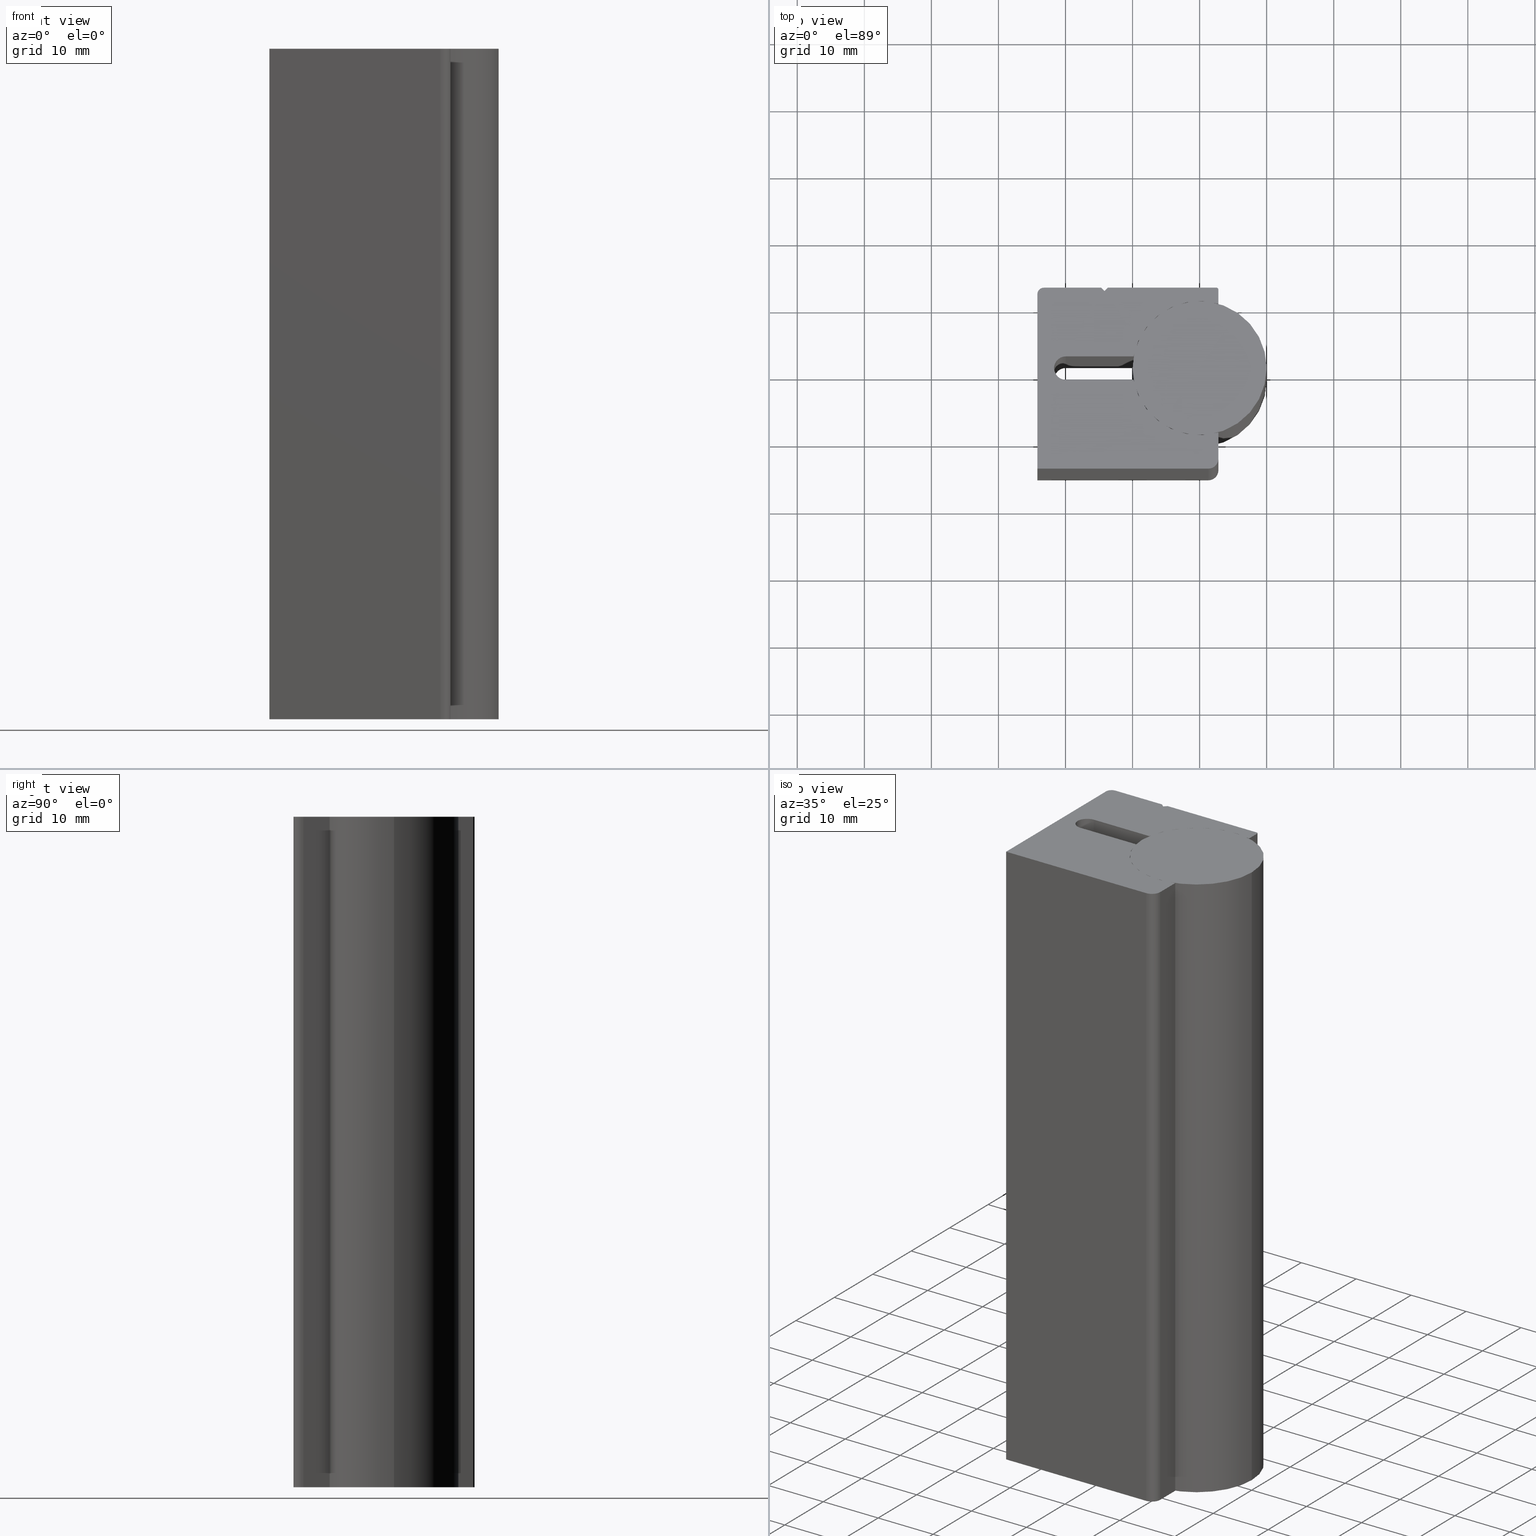
[diagram: canonical four-view strip — front | top / right | iso, engineering-drawing reading convention]
A machine part, canonical four-view strip (front | top / right | iso — engineering-drawing reading convention). The complete STEP part file that produces these views, byte-faithful:
ISO-10303-21;
HEADER;
/* Generated by software containing ST-Developer
 * from STEP Tools, Inc. (www.steptools.com) 
 */

FILE_DESCRIPTION(
/* description */ ('PROFILO GUIDA LINEARE GS20'),
/* implementation_level */ '2;1');

FILE_NAME(
/* name */ 
'C:\\Users\\tecnico5\\Desktop\\SITOWEB\\BPRGD0000069\\BPRGD0000069.stp',

/* time_stamp */ '2022-07-27T09:22:47+02:00',
/* author */ ('tecnico3.vi'),
/* organization */ (''),
/* preprocessor_version */ 'ST-DEVELOPER v18.1',
/* originating_system */ 'Autodesk Inventor 2022',
/* authorisation */ '');

FILE_SCHEMA (('AUTOMOTIVE_DESIGN { 1 0 10303 214 3 1 1 }'));
ENDSEC;

DATA;
#10=MECHANICAL_DESIGN_GEOMETRIC_PRESENTATION_REPRESENTATION('',(#23,#24),
#725);
#11=ITEM_DEFINED_TRANSFORMATION($,$,#451,#488);
#12=ITEM_DEFINED_TRANSFORMATION($,$,#482,#489);
#13=(
REPRESENTATION_RELATIONSHIP($,$,#739,#738)
REPRESENTATION_RELATIONSHIP_WITH_TRANSFORMATION(#11)
SHAPE_REPRESENTATION_RELATIONSHIP()
);
#14=(
REPRESENTATION_RELATIONSHIP($,$,#740,#738)
REPRESENTATION_RELATIONSHIP_WITH_TRANSFORMATION(#12)
SHAPE_REPRESENTATION_RELATIONSHIP()
);
#15=CONTEXT_DEPENDENT_SHAPE_REPRESENTATION(#13,#736);
#16=CONTEXT_DEPENDENT_SHAPE_REPRESENTATION(#14,#737);
#17=NEXT_ASSEMBLY_USAGE_OCCURRENCE('958530008660:1','958530008660:1',
'958530008660:1',#742,#743,'958530008660:1');
#18=NEXT_ASSEMBLY_USAGE_OCCURRENCE('958530008659:1','958530008659:1',
'958530008659:1',#742,#744,'958530008659:1');
#19=SHAPE_REPRESENTATION_RELATIONSHIP('SRR','None',#739,#21);
#20=SHAPE_REPRESENTATION_RELATIONSHIP('SRR','None',#740,#22);
#21=ADVANCED_BREP_SHAPE_REPRESENTATION('',(#25),#723);
#22=ADVANCED_BREP_SHAPE_REPRESENTATION('',(#26),#724);
#23=STYLED_ITEM('',(#414),#25);
#24=STYLED_ITEM('',(#415),#26);
#25=MANIFOLD_SOLID_BREP('Solido1',#386);
#26=MANIFOLD_SOLID_BREP('Solido1',#387);
#27=CIRCLE('',#456,0.300000000000006);
#28=CIRCLE('',#457,0.300000000000006);
#29=CIRCLE('',#460,10.);
#30=CIRCLE('',#461,10.);
#31=CIRCLE('',#464,1.75);
#32=CIRCLE('',#465,1.75);
#33=CIRCLE('',#468,10.);
#34=CIRCLE('',#469,10.);
#35=CIRCLE('',#472,1.5);
#36=CIRCLE('',#473,1.5);
#37=CIRCLE('',#477,1.00000000000001);
#38=CIRCLE('',#478,1.00000000000001);
#39=CIRCLE('',#484,10.);
#40=CIRCLE('',#485,10.);
#41=CYLINDRICAL_SURFACE('',#455,0.300000000000006);
#42=CYLINDRICAL_SURFACE('',#459,10.);
#43=CYLINDRICAL_SURFACE('',#463,1.75);
#44=CYLINDRICAL_SURFACE('',#467,10.);
#45=CYLINDRICAL_SURFACE('',#471,1.5);
#46=CYLINDRICAL_SURFACE('',#476,1.00000000000001);
#47=CYLINDRICAL_SURFACE('',#483,10.);
#48=FACE_OUTER_BOUND('',#69,.T.);
#49=FACE_OUTER_BOUND('',#70,.T.);
#50=FACE_OUTER_BOUND('',#71,.T.);
#51=FACE_OUTER_BOUND('',#72,.T.);
#52=FACE_OUTER_BOUND('',#73,.T.);
#53=FACE_OUTER_BOUND('',#74,.T.);
#54=FACE_OUTER_BOUND('',#75,.T.);
#55=FACE_OUTER_BOUND('',#76,.T.);
#56=FACE_OUTER_BOUND('',#77,.T.);
#57=FACE_OUTER_BOUND('',#78,.T.);
#58=FACE_OUTER_BOUND('',#79,.T.);
#59=FACE_OUTER_BOUND('',#80,.T.);
#60=FACE_OUTER_BOUND('',#81,.T.);
#61=FACE_OUTER_BOUND('',#82,.T.);
#62=FACE_OUTER_BOUND('',#83,.T.);
#63=FACE_OUTER_BOUND('',#84,.T.);
#64=FACE_OUTER_BOUND('',#85,.T.);
#65=FACE_OUTER_BOUND('',#86,.T.);
#66=FACE_OUTER_BOUND('',#87,.T.);
#67=FACE_OUTER_BOUND('',#88,.T.);
#68=FACE_OUTER_BOUND('',#89,.T.);
#69=EDGE_LOOP('',(#249,#250,#251,#252));
#70=EDGE_LOOP('',(#253,#254,#255,#256));
#71=EDGE_LOOP('',(#257,#258,#259,#260));
#72=EDGE_LOOP('',(#261,#262,#263,#264));
#73=EDGE_LOOP('',(#265,#266,#267,#268));
#74=EDGE_LOOP('',(#269,#270,#271,#272));
#75=EDGE_LOOP('',(#273,#274,#275,#276));
#76=EDGE_LOOP('',(#277,#278,#279,#280));
#77=EDGE_LOOP('',(#281,#282,#283,#284));
#78=EDGE_LOOP('',(#285,#286,#287,#288));
#79=EDGE_LOOP('',(#289,#290,#291,#292));
#80=EDGE_LOOP('',(#293,#294,#295,#296));
#81=EDGE_LOOP('',(#297,#298,#299,#300));
#82=EDGE_LOOP('',(#301,#302,#303,#304));
#83=EDGE_LOOP('',(#305,#306,#307,#308));
#84=EDGE_LOOP('',(#309,#310,#311,#312));
#85=EDGE_LOOP('',(#313,#314,#315,#316,#317,#318,#319,#320,#321,#322,#323,
#324,#325,#326,#327,#328));
#86=EDGE_LOOP('',(#329,#330,#331,#332,#333,#334,#335,#336,#337,#338,#339,
#340,#341,#342,#343,#344));
#87=EDGE_LOOP('',(#345,#346,#347,#348));
#88=EDGE_LOOP('',(#349));
#89=EDGE_LOOP('',(#350));
#90=LINE('',#612,#127);
#91=LINE('',#614,#128);
#92=LINE('',#616,#129);
#93=LINE('',#617,#130);
#94=LINE('',#620,#131);
#95=LINE('',#622,#132);
#96=LINE('',#623,#133);
#97=LINE('',#626,#134);
#98=LINE('',#628,#135);
#99=LINE('',#629,#136);
#100=LINE('',#635,#137);
#101=LINE('',#638,#138);
#102=LINE('',#640,#139);
#103=LINE('',#641,#140);
#104=LINE('',#647,#141);
#105=LINE('',#650,#142);
#106=LINE('',#652,#143);
#107=LINE('',#653,#144);
#108=LINE('',#659,#145);
#109=LINE('',#662,#146);
#110=LINE('',#664,#147);
#111=LINE('',#665,#148);
#112=LINE('',#671,#149);
#113=LINE('',#674,#150);
#114=LINE('',#676,#151);
#115=LINE('',#677,#152);
#116=LINE('',#683,#153);
#117=LINE('',#686,#154);
#118=LINE('',#688,#155);
#119=LINE('',#689,#156);
#120=LINE('',#692,#157);
#121=LINE('',#694,#158);
#122=LINE('',#695,#159);
#123=LINE('',#701,#160);
#124=LINE('',#703,#161);
#125=LINE('',#704,#162);
#126=LINE('',#712,#163);
#127=VECTOR('',#496,10.);
#128=VECTOR('',#497,10.);
#129=VECTOR('',#498,10.);
#130=VECTOR('',#499,10.);
#131=VECTOR('',#502,10.);
#132=VECTOR('',#503,10.);
#133=VECTOR('',#504,10.);
#134=VECTOR('',#507,10.);
#135=VECTOR('',#508,10.);
#136=VECTOR('',#509,10.);
#137=VECTOR('',#516,10.);
#138=VECTOR('',#519,10.);
#139=VECTOR('',#520,10.);
#140=VECTOR('',#521,10.);
#141=VECTOR('',#528,10.);
#142=VECTOR('',#531,10.);
#143=VECTOR('',#532,10.);
#144=VECTOR('',#533,10.);
#145=VECTOR('',#540,10.);
#146=VECTOR('',#543,10.);
#147=VECTOR('',#544,10.);
#148=VECTOR('',#545,10.);
#149=VECTOR('',#552,10.);
#150=VECTOR('',#555,10.);
#151=VECTOR('',#556,10.);
#152=VECTOR('',#557,10.);
#153=VECTOR('',#564,10.);
#154=VECTOR('',#567,10.);
#155=VECTOR('',#568,10.);
#156=VECTOR('',#569,10.);
#157=VECTOR('',#572,10.);
#158=VECTOR('',#573,10.);
#159=VECTOR('',#574,10.);
#160=VECTOR('',#581,10.);
#161=VECTOR('',#584,10.);
#162=VECTOR('',#585,10.);
#163=VECTOR('',#596,10.);
#164=VERTEX_POINT('',#610);
#165=VERTEX_POINT('',#611);
#166=VERTEX_POINT('',#613);
#167=VERTEX_POINT('',#615);
#168=VERTEX_POINT('',#619);
#169=VERTEX_POINT('',#621);
#170=VERTEX_POINT('',#625);
#171=VERTEX_POINT('',#627);
#172=VERTEX_POINT('',#631);
#173=VERTEX_POINT('',#633);
#174=VERTEX_POINT('',#637);
#175=VERTEX_POINT('',#639);
#176=VERTEX_POINT('',#643);
#177=VERTEX_POINT('',#645);
#178=VERTEX_POINT('',#649);
#179=VERTEX_POINT('',#651);
#180=VERTEX_POINT('',#655);
#181=VERTEX_POINT('',#657);
#182=VERTEX_POINT('',#661);
#183=VERTEX_POINT('',#663);
#184=VERTEX_POINT('',#667);
#185=VERTEX_POINT('',#669);
#186=VERTEX_POINT('',#673);
#187=VERTEX_POINT('',#675);
#188=VERTEX_POINT('',#679);
#189=VERTEX_POINT('',#681);
#190=VERTEX_POINT('',#685);
#191=VERTEX_POINT('',#687);
#192=VERTEX_POINT('',#691);
#193=VERTEX_POINT('',#693);
#194=VERTEX_POINT('',#697);
#195=VERTEX_POINT('',#699);
#196=VERTEX_POINT('',#709);
#197=VERTEX_POINT('',#711);
#198=EDGE_CURVE('',#164,#165,#90,.T.);
#199=EDGE_CURVE('',#165,#166,#91,.T.);
#200=EDGE_CURVE('',#167,#166,#92,.T.);
#201=EDGE_CURVE('',#164,#167,#93,.T.);
#202=EDGE_CURVE('',#168,#164,#94,.T.);
#203=EDGE_CURVE('',#169,#167,#95,.T.);
#204=EDGE_CURVE('',#168,#169,#96,.T.);
#205=EDGE_CURVE('',#170,#168,#97,.T.);
#206=EDGE_CURVE('',#171,#169,#98,.T.);
#207=EDGE_CURVE('',#170,#171,#99,.T.);
#208=EDGE_CURVE('',#172,#170,#27,.T.);
#209=EDGE_CURVE('',#173,#171,#28,.T.);
#210=EDGE_CURVE('',#172,#173,#100,.T.);
#211=EDGE_CURVE('',#174,#172,#101,.T.);
#212=EDGE_CURVE('',#175,#173,#102,.T.);
#213=EDGE_CURVE('',#174,#175,#103,.T.);
#214=EDGE_CURVE('',#176,#174,#29,.T.);
#215=EDGE_CURVE('',#177,#175,#30,.T.);
#216=EDGE_CURVE('',#176,#177,#104,.T.);
#217=EDGE_CURVE('',#178,#176,#105,.T.);
#218=EDGE_CURVE('',#179,#177,#106,.T.);
#219=EDGE_CURVE('',#178,#179,#107,.T.);
#220=EDGE_CURVE('',#180,#178,#31,.T.);
#221=EDGE_CURVE('',#181,#179,#32,.T.);
#222=EDGE_CURVE('',#180,#181,#108,.T.);
#223=EDGE_CURVE('',#182,#180,#109,.T.);
#224=EDGE_CURVE('',#183,#181,#110,.T.);
#225=EDGE_CURVE('',#182,#183,#111,.T.);
#226=EDGE_CURVE('',#184,#182,#33,.T.);
#227=EDGE_CURVE('',#185,#183,#34,.T.);
#228=EDGE_CURVE('',#184,#185,#112,.T.);
#229=EDGE_CURVE('',#186,#184,#113,.T.);
#230=EDGE_CURVE('',#187,#185,#114,.T.);
#231=EDGE_CURVE('',#186,#187,#115,.T.);
#232=EDGE_CURVE('',#188,#186,#35,.T.);
#233=EDGE_CURVE('',#189,#187,#36,.T.);
#234=EDGE_CURVE('',#188,#189,#116,.T.);
#235=EDGE_CURVE('',#190,#188,#117,.T.);
#236=EDGE_CURVE('',#191,#189,#118,.T.);
#237=EDGE_CURVE('',#190,#191,#119,.T.);
#238=EDGE_CURVE('',#192,#190,#120,.T.);
#239=EDGE_CURVE('',#193,#191,#121,.T.);
#240=EDGE_CURVE('',#192,#193,#122,.T.);
#241=EDGE_CURVE('',#194,#192,#37,.T.);
#242=EDGE_CURVE('',#195,#193,#38,.T.);
#243=EDGE_CURVE('',#194,#195,#123,.T.);
#244=EDGE_CURVE('',#165,#194,#124,.T.);
#245=EDGE_CURVE('',#166,#195,#125,.T.);
#246=EDGE_CURVE('',#196,#196,#39,.T.);
#247=EDGE_CURVE('',#196,#197,#126,.T.);
#248=EDGE_CURVE('',#197,#197,#40,.T.);
#249=ORIENTED_EDGE('',*,*,#198,.T.);
#250=ORIENTED_EDGE('',*,*,#199,.T.);
#251=ORIENTED_EDGE('',*,*,#200,.F.);
#252=ORIENTED_EDGE('',*,*,#201,.F.);
#253=ORIENTED_EDGE('',*,*,#202,.T.);
#254=ORIENTED_EDGE('',*,*,#201,.T.);
#255=ORIENTED_EDGE('',*,*,#203,.F.);
#256=ORIENTED_EDGE('',*,*,#204,.F.);
#257=ORIENTED_EDGE('',*,*,#205,.T.);
#258=ORIENTED_EDGE('',*,*,#204,.T.);
#259=ORIENTED_EDGE('',*,*,#206,.F.);
#260=ORIENTED_EDGE('',*,*,#207,.F.);
#261=ORIENTED_EDGE('',*,*,#208,.T.);
#262=ORIENTED_EDGE('',*,*,#207,.T.);
#263=ORIENTED_EDGE('',*,*,#209,.F.);
#264=ORIENTED_EDGE('',*,*,#210,.F.);
#265=ORIENTED_EDGE('',*,*,#211,.T.);
#266=ORIENTED_EDGE('',*,*,#210,.T.);
#267=ORIENTED_EDGE('',*,*,#212,.F.);
#268=ORIENTED_EDGE('',*,*,#213,.F.);
#269=ORIENTED_EDGE('',*,*,#214,.T.);
#270=ORIENTED_EDGE('',*,*,#213,.T.);
#271=ORIENTED_EDGE('',*,*,#215,.F.);
#272=ORIENTED_EDGE('',*,*,#216,.F.);
#273=ORIENTED_EDGE('',*,*,#217,.T.);
#274=ORIENTED_EDGE('',*,*,#216,.T.);
#275=ORIENTED_EDGE('',*,*,#218,.F.);
#276=ORIENTED_EDGE('',*,*,#219,.F.);
#277=ORIENTED_EDGE('',*,*,#220,.T.);
#278=ORIENTED_EDGE('',*,*,#219,.T.);
#279=ORIENTED_EDGE('',*,*,#221,.F.);
#280=ORIENTED_EDGE('',*,*,#222,.F.);
#281=ORIENTED_EDGE('',*,*,#223,.T.);
#282=ORIENTED_EDGE('',*,*,#222,.T.);
#283=ORIENTED_EDGE('',*,*,#224,.F.);
#284=ORIENTED_EDGE('',*,*,#225,.F.);
#285=ORIENTED_EDGE('',*,*,#226,.T.);
#286=ORIENTED_EDGE('',*,*,#225,.T.);
#287=ORIENTED_EDGE('',*,*,#227,.F.);
#288=ORIENTED_EDGE('',*,*,#228,.F.);
#289=ORIENTED_EDGE('',*,*,#229,.T.);
#290=ORIENTED_EDGE('',*,*,#228,.T.);
#291=ORIENTED_EDGE('',*,*,#230,.F.);
#292=ORIENTED_EDGE('',*,*,#231,.F.);
#293=ORIENTED_EDGE('',*,*,#232,.T.);
#294=ORIENTED_EDGE('',*,*,#231,.T.);
#295=ORIENTED_EDGE('',*,*,#233,.F.);
#296=ORIENTED_EDGE('',*,*,#234,.F.);
#297=ORIENTED_EDGE('',*,*,#235,.T.);
#298=ORIENTED_EDGE('',*,*,#234,.T.);
#299=ORIENTED_EDGE('',*,*,#236,.F.);
#300=ORIENTED_EDGE('',*,*,#237,.F.);
#301=ORIENTED_EDGE('',*,*,#238,.T.);
#302=ORIENTED_EDGE('',*,*,#237,.T.);
#303=ORIENTED_EDGE('',*,*,#239,.F.);
#304=ORIENTED_EDGE('',*,*,#240,.F.);
#305=ORIENTED_EDGE('',*,*,#241,.T.);
#306=ORIENTED_EDGE('',*,*,#240,.T.);
#307=ORIENTED_EDGE('',*,*,#242,.F.);
#308=ORIENTED_EDGE('',*,*,#243,.F.);
#309=ORIENTED_EDGE('',*,*,#244,.T.);
#310=ORIENTED_EDGE('',*,*,#243,.T.);
#311=ORIENTED_EDGE('',*,*,#245,.F.);
#312=ORIENTED_EDGE('',*,*,#199,.F.);
#313=ORIENTED_EDGE('',*,*,#245,.T.);
#314=ORIENTED_EDGE('',*,*,#242,.T.);
#315=ORIENTED_EDGE('',*,*,#239,.T.);
#316=ORIENTED_EDGE('',*,*,#236,.T.);
#317=ORIENTED_EDGE('',*,*,#233,.T.);
#318=ORIENTED_EDGE('',*,*,#230,.T.);
#319=ORIENTED_EDGE('',*,*,#227,.T.);
#320=ORIENTED_EDGE('',*,*,#224,.T.);
#321=ORIENTED_EDGE('',*,*,#221,.T.);
#322=ORIENTED_EDGE('',*,*,#218,.T.);
#323=ORIENTED_EDGE('',*,*,#215,.T.);
#324=ORIENTED_EDGE('',*,*,#212,.T.);
#325=ORIENTED_EDGE('',*,*,#209,.T.);
#326=ORIENTED_EDGE('',*,*,#206,.T.);
#327=ORIENTED_EDGE('',*,*,#203,.T.);
#328=ORIENTED_EDGE('',*,*,#200,.T.);
#329=ORIENTED_EDGE('',*,*,#244,.F.);
#330=ORIENTED_EDGE('',*,*,#198,.F.);
#331=ORIENTED_EDGE('',*,*,#202,.F.);
#332=ORIENTED_EDGE('',*,*,#205,.F.);
#333=ORIENTED_EDGE('',*,*,#208,.F.);
#334=ORIENTED_EDGE('',*,*,#211,.F.);
#335=ORIENTED_EDGE('',*,*,#214,.F.);
#336=ORIENTED_EDGE('',*,*,#217,.F.);
#337=ORIENTED_EDGE('',*,*,#220,.F.);
#338=ORIENTED_EDGE('',*,*,#223,.F.);
#339=ORIENTED_EDGE('',*,*,#226,.F.);
#340=ORIENTED_EDGE('',*,*,#229,.F.);
#341=ORIENTED_EDGE('',*,*,#232,.F.);
#342=ORIENTED_EDGE('',*,*,#235,.F.);
#343=ORIENTED_EDGE('',*,*,#238,.F.);
#344=ORIENTED_EDGE('',*,*,#241,.F.);
#345=ORIENTED_EDGE('',*,*,#246,.F.);
#346=ORIENTED_EDGE('',*,*,#247,.T.);
#347=ORIENTED_EDGE('',*,*,#248,.F.);
#348=ORIENTED_EDGE('',*,*,#247,.F.);
#349=ORIENTED_EDGE('',*,*,#246,.T.);
#350=ORIENTED_EDGE('',*,*,#248,.T.);
#351=PLANE('',#452);
#352=PLANE('',#453);
#353=PLANE('',#454);
#354=PLANE('',#458);
#355=PLANE('',#462);
#356=PLANE('',#466);
#357=PLANE('',#470);
#358=PLANE('',#474);
#359=PLANE('',#475);
#360=PLANE('',#479);
#361=PLANE('',#480);
#362=PLANE('',#481);
#363=PLANE('',#486);
#364=PLANE('',#487);
#365=ADVANCED_FACE('',(#48),#351,.T.);
#366=ADVANCED_FACE('',(#49),#352,.T.);
#367=ADVANCED_FACE('',(#50),#353,.T.);
#368=ADVANCED_FACE('',(#51),#41,.T.);
#369=ADVANCED_FACE('',(#52),#354,.T.);
#370=ADVANCED_FACE('',(#53),#42,.F.);
#371=ADVANCED_FACE('',(#54),#355,.T.);
#372=ADVANCED_FACE('',(#55),#43,.F.);
#373=ADVANCED_FACE('',(#56),#356,.T.);
#374=ADVANCED_FACE('',(#57),#44,.F.);
#375=ADVANCED_FACE('',(#58),#357,.T.);
#376=ADVANCED_FACE('',(#59),#45,.T.);
#377=ADVANCED_FACE('',(#60),#358,.T.);
#378=ADVANCED_FACE('',(#61),#359,.T.);
#379=ADVANCED_FACE('',(#62),#46,.T.);
#380=ADVANCED_FACE('',(#63),#360,.T.);
#381=ADVANCED_FACE('',(#64),#361,.T.);
#382=ADVANCED_FACE('',(#65),#362,.F.);
#383=ADVANCED_FACE('',(#66),#47,.T.);
#384=ADVANCED_FACE('',(#67),#363,.T.);
#385=ADVANCED_FACE('',(#68),#364,.F.);
#386=CLOSED_SHELL('',(#365,#366,#367,#368,#369,#370,#371,#372,#373,#374,
#375,#376,#377,#378,#379,#380,#381,#382));
#387=CLOSED_SHELL('',(#383,#384,#385));
#388=DERIVED_UNIT_ELEMENT(#393,1.);
#389=DERIVED_UNIT_ELEMENT(#727,-3.);
#390=DERIVED_UNIT_ELEMENT(#393,1.);
#391=DERIVED_UNIT_ELEMENT(#727,-3.);
#392=DIMENSIONAL_EXPONENTS(1.,0.,0.,0.,0.,0.,0.);
#393=(
CONVERSION_BASED_UNIT('gram',#395)
MASS_UNIT()
NAMED_UNIT(#392)
);
#394=(
MASS_UNIT()
NAMED_UNIT(*)
SI_UNIT(.KILO.,.GRAM.)
);
#395=MASS_MEASURE_WITH_UNIT(MASS_MEASURE(0.001),#394);
#396=DERIVED_UNIT((#388,#389));
#397=DERIVED_UNIT((#390,#391));
#398=MEASURE_REPRESENTATION_ITEM('density measure',
POSITIVE_RATIO_MEASURE(2.71),#396);
#399=MEASURE_REPRESENTATION_ITEM('density measure',
POSITIVE_RATIO_MEASURE(7.87),#397);
#400=PROPERTY_DEFINITION_REPRESENTATION(#410,#404);
#401=PROPERTY_DEFINITION_REPRESENTATION(#411,#405);
#402=PROPERTY_DEFINITION_REPRESENTATION(#412,#406);
#403=PROPERTY_DEFINITION_REPRESENTATION(#413,#407);
#404=REPRESENTATION('material name',(#408),#723);
#405=REPRESENTATION('density',(#398),#723);
#406=REPRESENTATION('material name',(#409),#724);
#407=REPRESENTATION('density',(#399),#724);
#408=DESCRIPTIVE_REPRESENTATION_ITEM('Alluminio 6060 Anticorodal',
'Alluminio 6060 Anticorodal');
#409=DESCRIPTIVE_REPRESENTATION_ITEM('Acciaio 1 C40','Acciaio 1 C40');
#410=PROPERTY_DEFINITION('material property','material name',#743);
#411=PROPERTY_DEFINITION('material property','density of part',#743);
#412=PROPERTY_DEFINITION('material property','material name',#744);
#413=PROPERTY_DEFINITION('material property','density of part',#744);
#414=PRESENTATION_STYLE_ASSIGNMENT((#416));
#415=PRESENTATION_STYLE_ASSIGNMENT((#417));
#416=SURFACE_STYLE_USAGE(.BOTH.,#422);
#417=SURFACE_STYLE_USAGE(.BOTH.,#423);
#418=SURFACE_STYLE_RENDERING_WITH_PROPERTIES($,#430,(#420));
#419=SURFACE_STYLE_RENDERING_WITH_PROPERTIES($,#431,(#421));
#420=SURFACE_STYLE_TRANSPARENT(0.);
#421=SURFACE_STYLE_TRANSPARENT(0.);
#422=SURFACE_SIDE_STYLE('',(#424,#418));
#423=SURFACE_SIDE_STYLE('',(#425,#419));
#424=SURFACE_STYLE_FILL_AREA(#426);
#425=SURFACE_STYLE_FILL_AREA(#427);
#426=FILL_AREA_STYLE('',(#428));
#427=FILL_AREA_STYLE('',(#429));
#428=FILL_AREA_STYLE_COLOUR('',#430);
#429=FILL_AREA_STYLE_COLOUR('',#431);
#430=COLOUR_RGB('',0.811764705882353,0.8,0.823529411764706);
#431=COLOUR_RGB('',0.956862745098039,0.956862745098039,0.956862745098039);
#432=DATE_TIME_ROLE('creation_date');
#433=DATE_TIME_ROLE('creation_date');
#434=DATE_TIME_ROLE('creation_date');
#435=APPLIED_DATE_AND_TIME_ASSIGNMENT(#438,#432,(#742));
#436=APPLIED_DATE_AND_TIME_ASSIGNMENT(#439,#433,(#743));
#437=APPLIED_DATE_AND_TIME_ASSIGNMENT(#440,#434,(#744));
#438=DATE_AND_TIME(#441,#444);
#439=DATE_AND_TIME(#442,#445);
#440=DATE_AND_TIME(#443,#446);
#441=CALENDAR_DATE(2015,26,10);
#442=CALENDAR_DATE(2015,26,10);
#443=CALENDAR_DATE(2015,26,10);
#444=LOCAL_TIME(0,0,0.,#447);
#445=LOCAL_TIME(0,0,0.,#448);
#446=LOCAL_TIME(0,0,0.,#449);
#447=COORDINATED_UNIVERSAL_TIME_OFFSET(0,0,.BEHIND.);
#448=COORDINATED_UNIVERSAL_TIME_OFFSET(0,0,.BEHIND.);
#449=COORDINATED_UNIVERSAL_TIME_OFFSET(0,0,.BEHIND.);
#450=AXIS2_PLACEMENT_3D('placement',#607,#490,#491);
#451=AXIS2_PLACEMENT_3D('placement',#608,#492,#493);
#452=AXIS2_PLACEMENT_3D('',#609,#494,#495);
#453=AXIS2_PLACEMENT_3D('',#618,#500,#501);
#454=AXIS2_PLACEMENT_3D('',#624,#505,#506);
#455=AXIS2_PLACEMENT_3D('',#630,#510,#511);
#456=AXIS2_PLACEMENT_3D('',#632,#512,#513);
#457=AXIS2_PLACEMENT_3D('',#634,#514,#515);
#458=AXIS2_PLACEMENT_3D('',#636,#517,#518);
#459=AXIS2_PLACEMENT_3D('',#642,#522,#523);
#460=AXIS2_PLACEMENT_3D('',#644,#524,#525);
#461=AXIS2_PLACEMENT_3D('',#646,#526,#527);
#462=AXIS2_PLACEMENT_3D('',#648,#529,#530);
#463=AXIS2_PLACEMENT_3D('',#654,#534,#535);
#464=AXIS2_PLACEMENT_3D('',#656,#536,#537);
#465=AXIS2_PLACEMENT_3D('',#658,#538,#539);
#466=AXIS2_PLACEMENT_3D('',#660,#541,#542);
#467=AXIS2_PLACEMENT_3D('',#666,#546,#547);
#468=AXIS2_PLACEMENT_3D('',#668,#548,#549);
#469=AXIS2_PLACEMENT_3D('',#670,#550,#551);
#470=AXIS2_PLACEMENT_3D('',#672,#553,#554);
#471=AXIS2_PLACEMENT_3D('',#678,#558,#559);
#472=AXIS2_PLACEMENT_3D('',#680,#560,#561);
#473=AXIS2_PLACEMENT_3D('',#682,#562,#563);
#474=AXIS2_PLACEMENT_3D('',#684,#565,#566);
#475=AXIS2_PLACEMENT_3D('',#690,#570,#571);
#476=AXIS2_PLACEMENT_3D('',#696,#575,#576);
#477=AXIS2_PLACEMENT_3D('',#698,#577,#578);
#478=AXIS2_PLACEMENT_3D('',#700,#579,#580);
#479=AXIS2_PLACEMENT_3D('',#702,#582,#583);
#480=AXIS2_PLACEMENT_3D('',#705,#586,#587);
#481=AXIS2_PLACEMENT_3D('',#706,#588,#589);
#482=AXIS2_PLACEMENT_3D('placement',#707,#590,#591);
#483=AXIS2_PLACEMENT_3D('',#708,#592,#593);
#484=AXIS2_PLACEMENT_3D('',#710,#594,#595);
#485=AXIS2_PLACEMENT_3D('',#713,#597,#598);
#486=AXIS2_PLACEMENT_3D('',#714,#599,#600);
#487=AXIS2_PLACEMENT_3D('',#715,#601,#602);
#488=AXIS2_PLACEMENT_3D('',#716,#603,#604);
#489=AXIS2_PLACEMENT_3D('',#717,#605,#606);
#490=DIRECTION('axis',(0.,0.,1.));
#491=DIRECTION('refdir',(1.,0.,0.));
#492=DIRECTION('axis',(0.,0.,1.));
#493=DIRECTION('refdir',(1.,0.,0.));
#494=DIRECTION('center_axis',(0.707106781262295,0.7071067811108,0.));
#495=DIRECTION('ref_axis',(-0.7071067811108,0.707106781262295,0.));
#496=DIRECTION('',(-0.7071067811108,0.707106781262295,0.));
#497=DIRECTION('',(0.,0.,1.));
#498=DIRECTION('',(-0.7071067811108,0.707106781262295,0.));
#499=DIRECTION('',(0.,0.,1.));
#500=DIRECTION('center_axis',(-0.707106781186508,0.707106781186587,0.));
#501=DIRECTION('ref_axis',(-0.707106781186587,-0.707106781186508,0.));
#502=DIRECTION('',(-0.707106781186587,-0.707106781186508,0.));
#503=DIRECTION('',(-0.707106781186587,-0.707106781186508,0.));
#504=DIRECTION('',(0.,0.,1.));
#505=DIRECTION('center_axis',(-6.61720335588575E-12,1.,0.));
#506=DIRECTION('ref_axis',(-1.,-6.61720335588575E-12,0.));
#507=DIRECTION('',(-1.,-6.61720335588575E-12,0.));
#508=DIRECTION('',(-1.,-6.61720335588575E-12,0.));
#509=DIRECTION('',(0.,0.,1.));
#510=DIRECTION('center_axis',(0.,0.,1.));
#511=DIRECTION('ref_axis',(1.,1.48029736616685E-14,0.));
#512=DIRECTION('center_axis',(0.,0.,1.));
#513=DIRECTION('ref_axis',(1.,1.48029736616685E-14,0.));
#514=DIRECTION('center_axis',(0.,0.,1.));
#515=DIRECTION('ref_axis',(1.,1.48029736616685E-14,0.));
#516=DIRECTION('',(0.,0.,1.));
#517=DIRECTION('center_axis',(1.,0.,0.));
#518=DIRECTION('ref_axis',(0.,1.,0.));
#519=DIRECTION('',(0.,1.,0.));
#520=DIRECTION('',(0.,1.,0.));
#521=DIRECTION('',(0.,0.,1.));
#522=DIRECTION('center_axis',(0.,0.,1.));
#523=DIRECTION('ref_axis',(-0.280000000009252,-0.959999999997301,0.));
#524=DIRECTION('center_axis',(0.,0.,-1.));
#525=DIRECTION('ref_axis',(-0.280000000009252,-0.959999999997301,0.));
#526=DIRECTION('center_axis',(0.,0.,-1.));
#527=DIRECTION('ref_axis',(-0.280000000009252,-0.959999999997301,0.));
#528=DIRECTION('',(0.,0.,1.));
#529=DIRECTION('center_axis',(4.94442550674018E-16,-1.,0.));
#530=DIRECTION('ref_axis',(1.,4.94442550674018E-16,0.));
#531=DIRECTION('',(1.,4.94442550674018E-16,0.));
#532=DIRECTION('',(1.,4.94442550674018E-16,0.));
#533=DIRECTION('',(0.,0.,1.));
#534=DIRECTION('center_axis',(0.,0.,1.));
#535=DIRECTION('ref_axis',(0.,-1.,0.));
#536=DIRECTION('center_axis',(0.,0.,-1.));
#537=DIRECTION('ref_axis',(0.,-1.,0.));
#538=DIRECTION('center_axis',(0.,0.,-1.));
#539=DIRECTION('ref_axis',(0.,-1.,0.));
#540=DIRECTION('',(0.,0.,1.));
#541=DIRECTION('center_axis',(2.7469030593001E-17,1.,0.));
#542=DIRECTION('ref_axis',(-1.,2.7469030593001E-17,0.));
#543=DIRECTION('',(-1.,2.7469030593001E-17,0.));
#544=DIRECTION('',(-1.,2.7469030593001E-17,0.));
#545=DIRECTION('',(0.,0.,1.));
#546=DIRECTION('center_axis',(0.,0.,1.));
#547=DIRECTION('ref_axis',(0.984568433375761,0.175000000000001,0.));
#548=DIRECTION('center_axis',(0.,0.,-1.));
#549=DIRECTION('ref_axis',(0.984568433375761,0.175000000000001,0.));
#550=DIRECTION('center_axis',(0.,0.,-1.));
#551=DIRECTION('ref_axis',(0.984568433375761,0.175000000000001,0.));
#552=DIRECTION('',(0.,0.,1.));
#553=DIRECTION('center_axis',(1.,0.,0.));
#554=DIRECTION('ref_axis',(0.,1.,0.));
#555=DIRECTION('',(0.,1.,0.));
#556=DIRECTION('',(0.,1.,0.));
#557=DIRECTION('',(0.,0.,1.));
#558=DIRECTION('center_axis',(0.,0.,1.));
#559=DIRECTION('ref_axis',(2.03540887847946E-15,-1.,0.));
#560=DIRECTION('center_axis',(0.,0.,1.));
#561=DIRECTION('ref_axis',(2.03540887847946E-15,-1.,0.));
#562=DIRECTION('center_axis',(0.,0.,1.));
#563=DIRECTION('ref_axis',(2.03540887847946E-15,-1.,0.));
#564=DIRECTION('',(0.,0.,1.));
#565=DIRECTION('center_axis',(-8.70763156568756E-17,-1.,0.));
#566=DIRECTION('ref_axis',(1.,-8.70763156568756E-17,0.));
#567=DIRECTION('',(1.,-8.70763156568756E-17,0.));
#568=DIRECTION('',(1.,-8.70763156568756E-17,0.));
#569=DIRECTION('',(0.,0.,1.));
#570=DIRECTION('center_axis',(-1.,0.,0.));
#571=DIRECTION('ref_axis',(0.,-1.,0.));
#572=DIRECTION('',(0.,-1.,0.));
#573=DIRECTION('',(0.,-1.,0.));
#574=DIRECTION('',(0.,0.,1.));
#575=DIRECTION('center_axis',(0.,0.,1.));
#576=DIRECTION('ref_axis',(-8.8817841970012E-15,1.,0.));
#577=DIRECTION('center_axis',(0.,0.,1.));
#578=DIRECTION('ref_axis',(-8.8817841970012E-15,1.,0.));
#579=DIRECTION('center_axis',(0.,0.,1.));
#580=DIRECTION('ref_axis',(-8.8817841970012E-15,1.,0.));
#581=DIRECTION('',(0.,0.,1.));
#582=DIRECTION('center_axis',(-2.6122894697229E-16,1.,0.));
#583=DIRECTION('ref_axis',(-1.,-2.6122894697229E-16,0.));
#584=DIRECTION('',(-1.,-2.6122894697229E-16,0.));
#585=DIRECTION('',(-1.,-2.6122894697229E-16,0.));
#586=DIRECTION('center_axis',(0.,0.,1.));
#587=DIRECTION('ref_axis',(1.,0.,0.));
#588=DIRECTION('center_axis',(0.,0.,1.));
#589=DIRECTION('ref_axis',(1.,0.,0.));
#590=DIRECTION('axis',(0.,0.,1.));
#591=DIRECTION('refdir',(1.,0.,0.));
#592=DIRECTION('center_axis',(0.,0.,1.));
#593=DIRECTION('ref_axis',(-1.,0.,0.));
#594=DIRECTION('center_axis',(0.,0.,1.));
#595=DIRECTION('ref_axis',(-1.,0.,0.));
#596=DIRECTION('',(0.,0.,-1.));
#597=DIRECTION('center_axis',(0.,0.,-1.));
#598=DIRECTION('ref_axis',(-1.,0.,0.));
#599=DIRECTION('center_axis',(0.,0.,1.));
#600=DIRECTION('ref_axis',(1.,0.,0.));
#601=DIRECTION('center_axis',(0.,0.,1.));
#602=DIRECTION('ref_axis',(1.,0.,0.));
#603=DIRECTION('',(0.,0.,1.));
#604=DIRECTION('',(1.,0.,0.));
#605=DIRECTION('',(0.,0.,1.));
#606=DIRECTION('',(1.,0.,0.));
#607=CARTESIAN_POINT('',(0.,0.,0.));
#608=CARTESIAN_POINT('',(0.,0.,0.));
#609=CARTESIAN_POINT('Origin',(-14.1999999999615,11.4999999999198,0.));
#610=CARTESIAN_POINT('',(-14.1999999999615,11.4999999999198,0.));
#611=CARTESIAN_POINT('',(-14.6999999999615,12.0000000000269,0.));
#612=CARTESIAN_POINT('',(-14.1999999999615,11.4999999999198,0.));
#613=CARTESIAN_POINT('',(-14.6999999999615,12.0000000000269,100.));
#614=CARTESIAN_POINT('',(-14.6999999999615,12.0000000000269,0.));
#615=CARTESIAN_POINT('',(-14.1999999999615,11.4999999999198,100.));
#616=CARTESIAN_POINT('',(-14.1999999999615,11.4999999999198,100.));
#617=CARTESIAN_POINT('',(-14.1999999999615,11.4999999999198,0.));
#618=CARTESIAN_POINT('Origin',(-13.6999999999615,11.9999999999197,0.));
#619=CARTESIAN_POINT('',(-13.6999999999615,11.9999999999197,0.));
#620=CARTESIAN_POINT('',(-13.6999999999615,11.9999999999197,0.));
#621=CARTESIAN_POINT('',(-13.6999999999615,11.9999999999197,100.));
#622=CARTESIAN_POINT('',(-13.6999999999615,11.9999999999197,100.));
#623=CARTESIAN_POINT('',(-13.6999999999615,11.9999999999197,0.));
#624=CARTESIAN_POINT('Origin',(2.50000000009254,12.0000000000269,0.));
#625=CARTESIAN_POINT('',(2.50000000009254,12.0000000000269,0.));
#626=CARTESIAN_POINT('',(2.50000000009254,12.0000000000269,0.));
#627=CARTESIAN_POINT('',(2.50000000009254,12.0000000000269,100.));
#628=CARTESIAN_POINT('',(2.50000000009254,12.0000000000269,100.));
#629=CARTESIAN_POINT('',(2.50000000009254,12.0000000000269,0.));
#630=CARTESIAN_POINT('Origin',(2.50000000009254,11.7000000000269,0.));
#631=CARTESIAN_POINT('',(2.80000000009254,11.7000000000269,0.));
#632=CARTESIAN_POINT('Origin',(2.50000000009254,11.7000000000269,0.));
#633=CARTESIAN_POINT('',(2.80000000009254,11.7000000000269,100.));
#634=CARTESIAN_POINT('Origin',(2.50000000009254,11.7000000000269,100.));
#635=CARTESIAN_POINT('',(2.80000000009254,11.7000000000269,0.));
#636=CARTESIAN_POINT('Origin',(2.80000000009254,9.59999999997308,0.));
#637=CARTESIAN_POINT('',(2.80000000009254,9.59999999997308,0.));
#638=CARTESIAN_POINT('',(2.80000000009254,9.59999999997308,0.));
#639=CARTESIAN_POINT('',(2.80000000009254,9.59999999997308,100.));
#640=CARTESIAN_POINT('',(2.80000000009254,9.59999999997308,100.));
#641=CARTESIAN_POINT('',(2.80000000009254,9.59999999997308,0.));
#642=CARTESIAN_POINT('Origin',(0.,0.,0.));
#643=CARTESIAN_POINT('',(-9.84568433375761,1.74999999999999,0.));
#644=CARTESIAN_POINT('Origin',(0.,0.,0.));
#645=CARTESIAN_POINT('',(-9.84568433375761,1.74999999999999,100.));
#646=CARTESIAN_POINT('Origin',(0.,0.,100.));
#647=CARTESIAN_POINT('',(-9.84568433375761,1.74999999999999,0.));
#648=CARTESIAN_POINT('Origin',(-19.9499999999613,1.74999999999999,0.));
#649=CARTESIAN_POINT('',(-19.9499999999613,1.74999999999999,0.));
#650=CARTESIAN_POINT('',(-19.9499999999613,1.74999999999999,0.));
#651=CARTESIAN_POINT('',(-19.9499999999613,1.74999999999999,100.));
#652=CARTESIAN_POINT('',(-19.9499999999613,1.74999999999999,100.));
#653=CARTESIAN_POINT('',(-19.9499999999613,1.74999999999999,0.));
#654=CARTESIAN_POINT('Origin',(-19.9499999999613,-1.04083408558608E-14,
0.));
#655=CARTESIAN_POINT('',(-19.9499999999613,-1.75000000000001,0.));
#656=CARTESIAN_POINT('Origin',(-19.9499999999613,-1.04083408558608E-14,
0.));
#657=CARTESIAN_POINT('',(-19.9499999999613,-1.75000000000001,100.));
#658=CARTESIAN_POINT('Origin',(-19.9499999999613,-1.04083408558608E-14,
100.));
#659=CARTESIAN_POINT('',(-19.9499999999613,-1.75000000000001,0.));
#660=CARTESIAN_POINT('Origin',(-9.84568433375761,-1.75000000000001,0.));
#661=CARTESIAN_POINT('',(-9.84568433375761,-1.75000000000001,0.));
#662=CARTESIAN_POINT('',(-9.84568433375761,-1.75000000000001,0.));
#663=CARTESIAN_POINT('',(-9.84568433375761,-1.75000000000001,100.));
#664=CARTESIAN_POINT('',(-9.84568433375761,-1.75000000000001,100.));
#665=CARTESIAN_POINT('',(-9.84568433375761,-1.75000000000001,0.));
#666=CARTESIAN_POINT('Origin',(0.,0.,0.));
#667=CARTESIAN_POINT('',(2.80000000009254,-9.59999999997294,0.));
#668=CARTESIAN_POINT('Origin',(0.,0.,0.));
#669=CARTESIAN_POINT('',(2.80000000009254,-9.59999999997294,100.));
#670=CARTESIAN_POINT('Origin',(0.,0.,100.));
#671=CARTESIAN_POINT('',(2.80000000009254,-9.59999999997294,0.));
#672=CARTESIAN_POINT('Origin',(2.80000000009254,-13.4999999999731,0.));
#673=CARTESIAN_POINT('',(2.80000000009254,-13.4999999999731,0.));
#674=CARTESIAN_POINT('',(2.80000000009254,-13.4999999999731,0.));
#675=CARTESIAN_POINT('',(2.80000000009254,-13.4999999999731,100.));
#676=CARTESIAN_POINT('',(2.80000000009254,-13.4999999999731,100.));
#677=CARTESIAN_POINT('',(2.80000000009254,-13.4999999999731,0.));
#678=CARTESIAN_POINT('Origin',(1.30000000009254,-13.4999999999731,0.));
#679=CARTESIAN_POINT('',(1.30000000009255,-14.9999999999731,0.));
#680=CARTESIAN_POINT('Origin',(1.30000000009254,-13.4999999999731,0.));
#681=CARTESIAN_POINT('',(1.30000000009255,-14.9999999999731,100.));
#682=CARTESIAN_POINT('Origin',(1.30000000009254,-13.4999999999731,100.));
#683=CARTESIAN_POINT('',(1.30000000009255,-14.9999999999731,0.));
#684=CARTESIAN_POINT('Origin',(-24.1999999999073,-14.9999999999731,0.));
#685=CARTESIAN_POINT('',(-24.1999999999073,-14.9999999999731,0.));
#686=CARTESIAN_POINT('',(-24.1999999999073,-14.9999999999731,0.));
#687=CARTESIAN_POINT('',(-24.1999999999073,-14.9999999999731,100.));
#688=CARTESIAN_POINT('',(-24.1999999999073,-14.9999999999731,100.));
#689=CARTESIAN_POINT('',(-24.1999999999073,-14.9999999999731,0.));
#690=CARTESIAN_POINT('Origin',(-24.1999999999073,11.0000000000269,0.));
#691=CARTESIAN_POINT('',(-24.1999999999073,11.0000000000269,0.));
#692=CARTESIAN_POINT('',(-24.1999999999073,11.0000000000269,0.));
#693=CARTESIAN_POINT('',(-24.1999999999073,11.0000000000269,100.));
#694=CARTESIAN_POINT('',(-24.1999999999073,11.0000000000269,100.));
#695=CARTESIAN_POINT('',(-24.1999999999073,11.0000000000269,0.));
#696=CARTESIAN_POINT('Origin',(-23.1999999999073,11.0000000000269,0.));
#697=CARTESIAN_POINT('',(-23.1999999999073,12.0000000000269,0.));
#698=CARTESIAN_POINT('Origin',(-23.1999999999073,11.0000000000269,0.));
#699=CARTESIAN_POINT('',(-23.1999999999073,12.0000000000269,100.));
#700=CARTESIAN_POINT('Origin',(-23.1999999999073,11.0000000000269,100.));
#701=CARTESIAN_POINT('',(-23.1999999999073,12.0000000000269,0.));
#702=CARTESIAN_POINT('Origin',(-14.6999999999615,12.0000000000269,0.));
#703=CARTESIAN_POINT('',(-14.6999999999615,12.0000000000269,0.));
#704=CARTESIAN_POINT('',(-14.6999999999615,12.0000000000269,100.));
#705=CARTESIAN_POINT('Origin',(-12.4981949400537,-1.1126635686126,100.));
#706=CARTESIAN_POINT('Origin',(-12.4981949400537,-1.1126635686126,0.));
#707=CARTESIAN_POINT('',(0.,0.,0.));
#708=CARTESIAN_POINT('Origin',(0.,0.,0.));
#709=CARTESIAN_POINT('',(10.,1.22464679914735E-15,100.));
#710=CARTESIAN_POINT('Origin',(0.,0.,100.));
#711=CARTESIAN_POINT('',(10.,1.22464679914735E-15,0.));
#712=CARTESIAN_POINT('',(10.,1.22464679914735E-15,0.));
#713=CARTESIAN_POINT('Origin',(0.,0.,0.));
#714=CARTESIAN_POINT('Origin',(-4.72128241470665E-16,0.,100.));
#715=CARTESIAN_POINT('Origin',(-4.72128241470665E-16,0.,0.));
#716=CARTESIAN_POINT('',(0.,0.,0.));
#717=CARTESIAN_POINT('',(0.,0.,0.));
#718=UNCERTAINTY_MEASURE_WITH_UNIT(LENGTH_MEASURE(0.01),#726,
'DISTANCE_ACCURACY_VALUE',
'Maximum model space distance between geometric entities at asserted c
onnectivities');
#719=UNCERTAINTY_MEASURE_WITH_UNIT(LENGTH_MEASURE(0.01),#726,
'DISTANCE_ACCURACY_VALUE',
'Maximum model space distance between geometric entities at asserted c
onnectivities');
#720=UNCERTAINTY_MEASURE_WITH_UNIT(LENGTH_MEASURE(0.01),#726,
'DISTANCE_ACCURACY_VALUE',
'Maximum model space distance between geometric entities at asserted c
onnectivities');
#721=UNCERTAINTY_MEASURE_WITH_UNIT(LENGTH_MEASURE(0.01),#726,
'DISTANCE_ACCURACY_VALUE',
'Maximum model space distance between geometric entities at asserted c
onnectivities');
#722=(
GEOMETRIC_REPRESENTATION_CONTEXT(3)
GLOBAL_UNCERTAINTY_ASSIGNED_CONTEXT((#718))
GLOBAL_UNIT_ASSIGNED_CONTEXT((#726,#728,#729))
REPRESENTATION_CONTEXT('','3D')
);
#723=(
GEOMETRIC_REPRESENTATION_CONTEXT(3)
GLOBAL_UNCERTAINTY_ASSIGNED_CONTEXT((#719))
GLOBAL_UNIT_ASSIGNED_CONTEXT((#726,#728,#729))
REPRESENTATION_CONTEXT('','3D')
);
#724=(
GEOMETRIC_REPRESENTATION_CONTEXT(3)
GLOBAL_UNCERTAINTY_ASSIGNED_CONTEXT((#720))
GLOBAL_UNIT_ASSIGNED_CONTEXT((#726,#728,#729))
REPRESENTATION_CONTEXT('','3D')
);
#725=(
GEOMETRIC_REPRESENTATION_CONTEXT(3)
GLOBAL_UNCERTAINTY_ASSIGNED_CONTEXT((#721))
GLOBAL_UNIT_ASSIGNED_CONTEXT((#726,#728,#729))
REPRESENTATION_CONTEXT('','3D')
);
#726=(
LENGTH_UNIT()
NAMED_UNIT(*)
SI_UNIT(.MILLI.,.METRE.)
);
#727=(
LENGTH_UNIT()
NAMED_UNIT(*)
SI_UNIT(.CENTI.,.METRE.)
);
#728=(
NAMED_UNIT(*)
PLANE_ANGLE_UNIT()
SI_UNIT($,.RADIAN.)
);
#729=(
NAMED_UNIT(*)
SI_UNIT($,.STERADIAN.)
SOLID_ANGLE_UNIT()
);
#730=SHAPE_DEFINITION_REPRESENTATION(#733,#738);
#731=SHAPE_DEFINITION_REPRESENTATION(#734,#739);
#732=SHAPE_DEFINITION_REPRESENTATION(#735,#740);
#733=PRODUCT_DEFINITION_SHAPE('',$,#742);
#734=PRODUCT_DEFINITION_SHAPE('',$,#743);
#735=PRODUCT_DEFINITION_SHAPE('',$,#744);
#736=PRODUCT_DEFINITION_SHAPE($,$,#17);
#737=PRODUCT_DEFINITION_SHAPE($,$,#18);
#738=SHAPE_REPRESENTATION('',(#450,#488,#489),#722);
#739=SHAPE_REPRESENTATION('',(#451),#723);
#740=SHAPE_REPRESENTATION('',(#482),#724);
#741=PRODUCT_DEFINITION_CONTEXT('part definition',#752,'design');
#742=PRODUCT_DEFINITION('!80PGL0006!1620!!','959530008588',#745,#741);
#743=PRODUCT_DEFINITION('958530008660','958530008660',#746,#741);
#744=PRODUCT_DEFINITION('958530008659','958530008659',#747,#741);
#745=PRODUCT_DEFINITION_FORMATION('A',$,#754);
#746=PRODUCT_DEFINITION_FORMATION('A',$,#755);
#747=PRODUCT_DEFINITION_FORMATION('A',$,#756);
#748=PRODUCT_RELATED_PRODUCT_CATEGORY('959530008588','959530008588',(#754));
#749=PRODUCT_RELATED_PRODUCT_CATEGORY('958530008660','958530008660',(#755));
#750=PRODUCT_RELATED_PRODUCT_CATEGORY('958530008659','958530008659',(#756));
#751=APPLICATION_PROTOCOL_DEFINITION('international standard',
'automotive_design',2009,#752);
#752=APPLICATION_CONTEXT(
'Core Data for Automotive Mechanical Design Process');
#753=PRODUCT_CONTEXT('part definition',#752,'mechanical');
#754=PRODUCT('!80PGL0006!1620!!','959530008588',
'PROFILO GUIDA LINEARE GS20',(#753));
#755=PRODUCT('958530008660','958530008660','111',(#753));
#756=PRODUCT('958530008659','958530008659','111',(#753));
ENDSEC;
END-ISO-10303-21;
